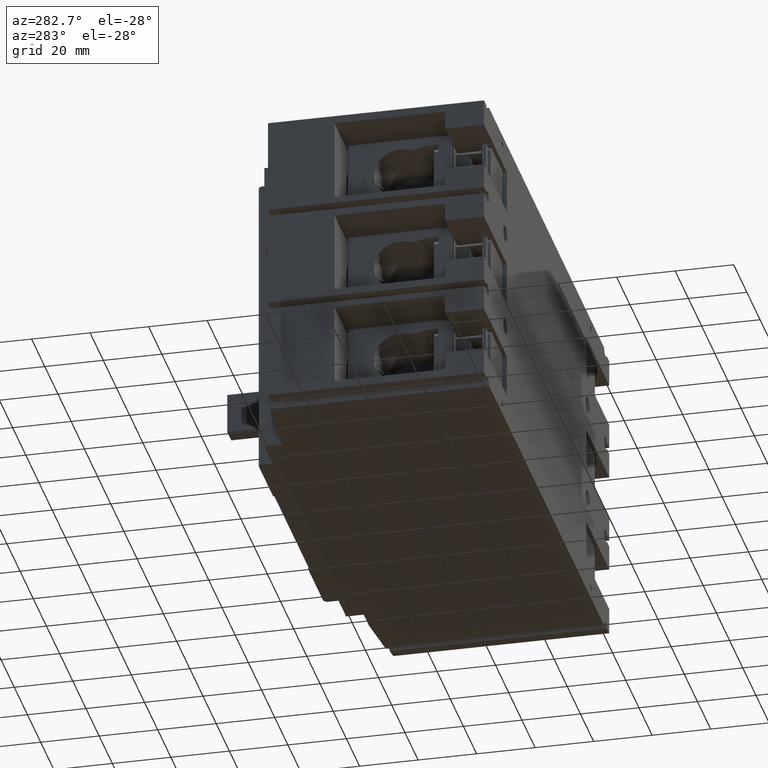
[diagram: clean part render]
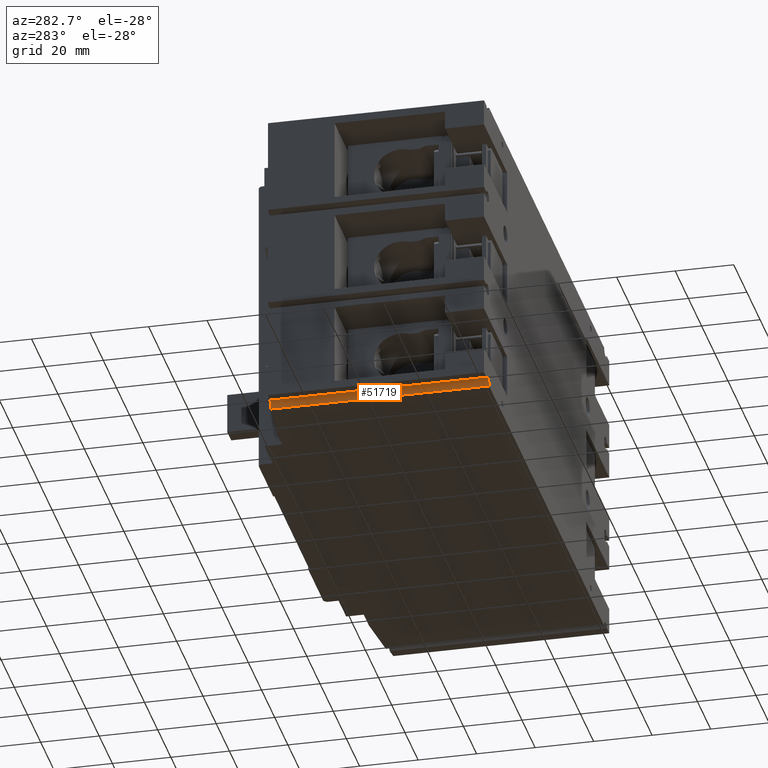
[diagram: same view with one face highlighted and labeled with its STEP entity id]
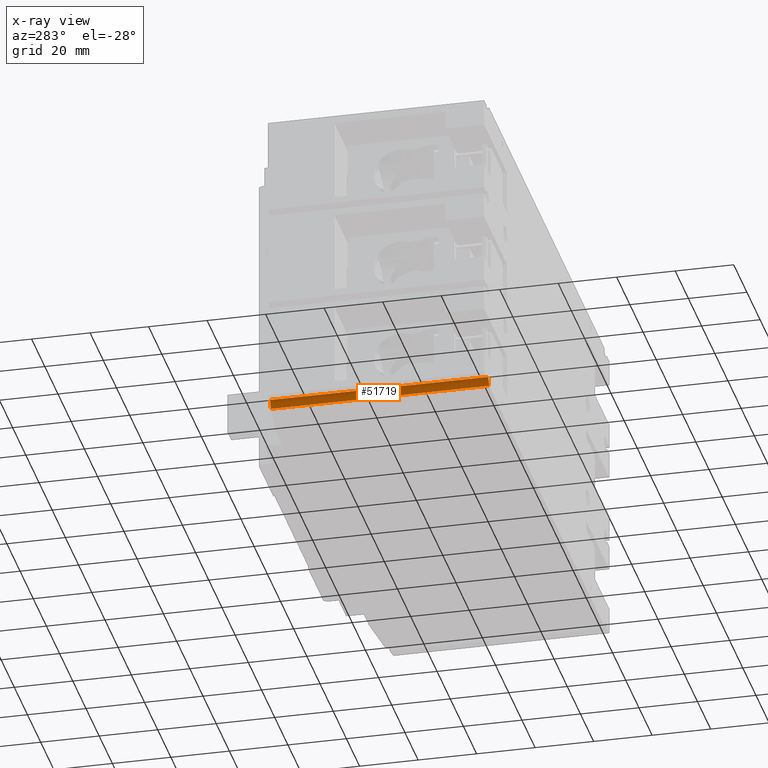
[diagram: x-ray of the same camera — body ghosted, the highlighted face saturated]
A machine part, auxiliary view. The second image highlights one B-rep face of the part: STEP entity #51719.
The next image is the same camera in x-ray: the body ghosted, the highlighted face saturated — about 0% of this face is hidden behind the body in this view.
In plain terms, the highlighted cylindrical surface (edge-blend (fillet) strip) has radius 2.2 mm, axis along (0, 1, 0).
Its self-contained STEP definition (entity closure, byte-faithful):
#3826 = CARTESIAN_POINT ( 'NONE',  ( -3.472884639260662265, 2.935237652810433584, -1.980314960629921295 ) ) ;
#5732 = EDGE_CURVE ( 'NONE', #29383, #30623, #48364, .T. ) ;
#8596 = LINE ( 'NONE', #55636, #59937 ) ;
#11980 = CARTESIAN_POINT ( 'NONE',  ( -3.523622047244094446, 3.011811023622047223, -2.066929133858267598 ) ) ;
#18690 = DIRECTION ( 'NONE',  ( 0.000000000000000000, 1.000000000000000000, 0.000000000000000000 ) ) ;
#26703 = EDGE_CURVE ( 'NONE', #29383, #55113, #67741, .T. ) ;
#26987 = DIRECTION ( 'NONE',  ( 0.000000000000000000, 0.000000000000000000, 1.000000000000000000 ) ) ;
#28048 = CARTESIAN_POINT ( 'NONE',  ( -3.437007874015747699, 2.939069291338586964, -2.066929133858267598 ) ) ;
#29383 = VERTEX_POINT ( 'NONE', #69851 ) ;
#29876 = ORIENTED_EDGE ( 'NONE', *, *, #26703, .T. ) ;
#29930 = EDGE_CURVE ( 'NONE', #30623, #63611, #30917, .T. ) ;
#30623 = VERTEX_POINT ( 'NONE', #52440 ) ;
#30917 =( BOUNDED_CURVE ( )  B_SPLINE_CURVE ( 3, ( #28048, #74366, #3826, #51558 ),
 .UNSPECIFIED., .F., .F. ) 
 B_SPLINE_CURVE_WITH_KNOTS ( ( 4, 4 ),
 ( 0.000000000000000000, 1.570796326794896558 ),
 .UNSPECIFIED. ) 
 CURVE ( )  GEOMETRIC_REPRESENTATION_ITEM ( )  RATIONAL_B_SPLINE_CURVE ( ( 1.000000000000000000, 0.8047378541243649375, 0.8047378541243649375, 1.000000000000000000 ) ) 
 REPRESENTATION_ITEM ( '' )  );
#34498 = AXIS2_PLACEMENT_3D ( 'NONE', #74425, #68587, #26987 ) ;
#35478 = DIRECTION ( 'NONE',  ( 0.000000000000000000, 1.000000000000000000, 0.000000000000000000 ) ) ;
#43555 = EDGE_LOOP ( 'NONE', ( #29876, #58036, #70460, #56676 ) ) ;
#47524 = AXIS2_PLACEMENT_3D ( 'NONE', #11980, #35478, #58998 ) ;
#48364 = LINE ( 'NONE', #55690, #66338 ) ;
#51558 = CARTESIAN_POINT ( 'NONE',  ( -3.523622047244094446, 2.929818897637801900, -1.980314960629921295 ) ) ;
#51719 = ADVANCED_FACE ( 'NONE', ( #52836 ), #64767, .F. ) ;
#52440 = CARTESIAN_POINT ( 'NONE',  ( -3.437007874015747699, 2.939069291338586964, -2.066929133858267598 ) ) ;
#52508 = EDGE_CURVE ( 'NONE', #55113, #63611, #8596, .T. ) ;
#52836 = FACE_OUTER_BOUND ( 'NONE', #43555, .T. ) ;
#55113 = VERTEX_POINT ( 'NONE', #65908 ) ;
#55636 = CARTESIAN_POINT ( 'NONE',  ( -3.523622047244094446, 3.011811023622047223, -1.980314960629921295 ) ) ;
#55690 = CARTESIAN_POINT ( 'NONE',  ( -3.437007874015748143, 3.011811023622047223, -2.066929133858267598 ) ) ;
#56676 = ORIENTED_EDGE ( 'NONE', *, *, #5732, .F. ) ;
#58036 = ORIENTED_EDGE ( 'NONE', *, *, #52508, .T. ) ;
#58998 = DIRECTION ( 'NONE',  ( 0.000000000000000000, 0.000000000000000000, 1.000000000000000000 ) ) ;
#59937 = VECTOR ( 'NONE', #73731, 39.37007874015748143 ) ;
#63611 = VERTEX_POINT ( 'NONE', #67689 ) ;
#64767 = CYLINDRICAL_SURFACE ( 'NONE', #47524, 0.08661417322834648325 ) ;
#65908 = CARTESIAN_POINT ( 'NONE',  ( -3.523622047244094446, 0.000000000000000000, -1.980314960629921295 ) ) ;
#66338 = VECTOR ( 'NONE', #18690, 39.37007874015748143 ) ;
#67689 = CARTESIAN_POINT ( 'NONE',  ( -3.523622047244094446, 2.929818897637801900, -1.980314960629921295 ) ) ;
#67741 = CIRCLE ( 'NONE', #34498, 0.08661417322834648325 ) ;
#68587 = DIRECTION ( 'NONE',  ( -0.000000000000000000, -1.000000000000000000, -0.000000000000000000 ) ) ;
#69851 = CARTESIAN_POINT ( 'NONE',  ( -3.437007874015748143, 0.000000000000000000, -2.066929133858267598 ) ) ;
#70460 = ORIENTED_EDGE ( 'NONE', *, *, #29930, .F. ) ;
#73731 = DIRECTION ( 'NONE',  ( 0.000000000000000000, 1.000000000000000000, 0.000000000000000000 ) ) ;
#74366 = CARTESIAN_POINT ( 'NONE',  ( -3.437007874015747255, 2.939069291338591849, -2.016191725874834972 ) ) ;
#74425 = CARTESIAN_POINT ( 'NONE',  ( -3.523622047244094446, 0.000000000000000000, -2.066929133858267598 ) ) ;